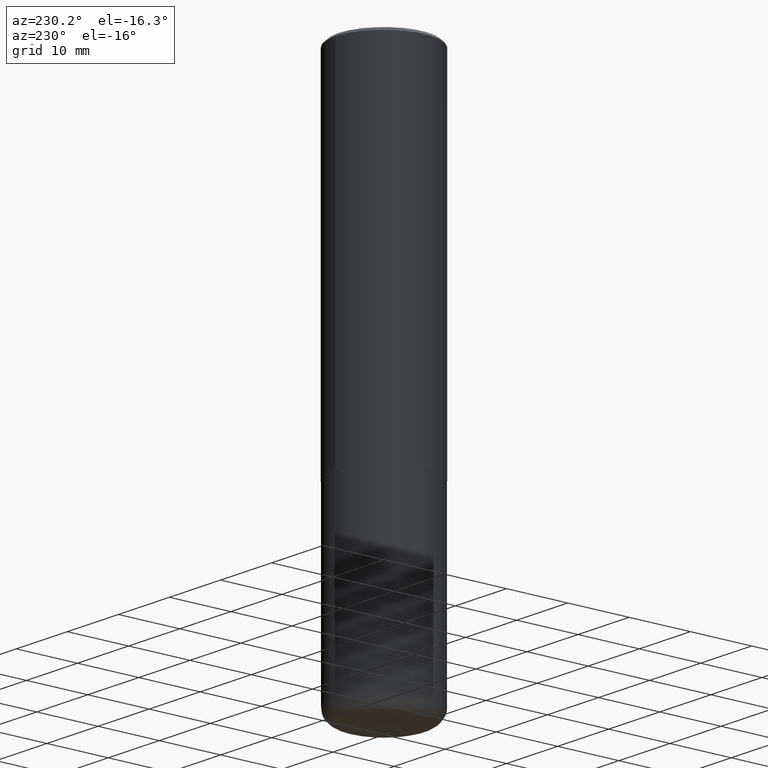
[diagram: clean part render]
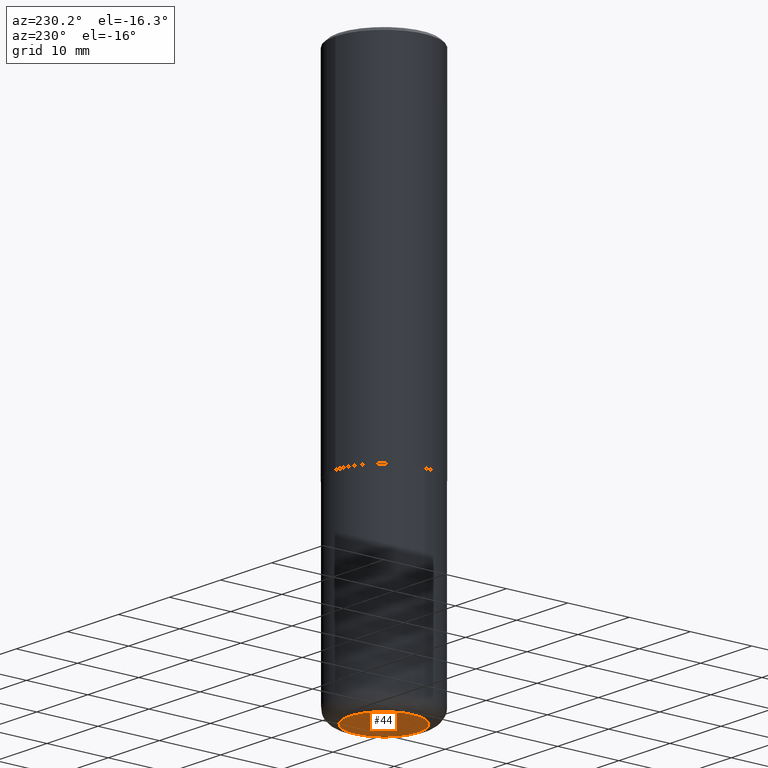
[diagram: same view with one face highlighted and labeled with its STEP entity id]
A machine part, auxiliary view. The second image highlights one B-rep face of the part: STEP entity #44.
In plain terms, the highlighted planar face has unit normal (0, -0, -1).
Its self-contained STEP definition (entity closure, byte-faithful):
#13 = CARTESIAN_POINT ( 'NONE',  ( -0.2225000000000000033, -1.016236620754480236E-14, -3.499999999999999112 ) ) ;
#23 = EDGE_CURVE ( 'NONE', #90, #392, #182, .T. ) ;
#33 = CARTESIAN_POINT ( 'NONE',  ( 8.559140821647976968E-29, -1.222018468595100619E-14, -3.499999999999999112 ) ) ;
#36 = DIRECTION ( 'NONE',  ( -2.445468806185136597E-29, 3.491481338843145583E-15, 1.000000000000000000 ) ) ;
#44 = ADVANCED_FACE ( 'NONE', ( #228 ), #162, .T. ) ;
#63 = AXIS2_PLACEMENT_3D ( 'NONE', #401, #366, #326 ) ;
#65 = DIRECTION ( 'NONE',  ( 1.000000000000000000, -6.982962677686269077E-15, 0.000000000000000000 ) ) ;
#89 = EDGE_CURVE ( 'NONE', #392, #90, #305, .T. ) ;
#90 = VERTEX_POINT ( 'NONE', #13 ) ;
#99 = ORIENTED_EDGE ( 'NONE', *, *, #23, .F. ) ;
#151 = AXIS2_PLACEMENT_3D ( 'NONE', #33, #169, #299 ) ;
#156 = ORIENTED_EDGE ( 'NONE', *, *, #89, .F. ) ;
#162 = PLANE ( 'NONE',  #63 ) ;
#169 = DIRECTION ( 'NONE',  ( -2.445468806185136597E-29, 3.491481338843145583E-15, 1.000000000000000000 ) ) ;
#182 = CIRCLE ( 'NONE', #361, 0.2225000000000000033 ) ;
#204 = CARTESIAN_POINT ( 'NONE',  ( 8.559140821647976968E-29, -1.222018468595100619E-14, -3.499999999999999112 ) ) ;
#228 = FACE_OUTER_BOUND ( 'NONE', #402, .T. ) ;
#299 = DIRECTION ( 'NONE',  ( 1.000000000000000000, -6.982962677686269077E-15, 0.000000000000000000 ) ) ;
#305 = CIRCLE ( 'NONE', #151, 0.2225000000000000033 ) ;
#326 = DIRECTION ( 'NONE',  ( -1.000000000000000000, 6.982962677686265922E-15, -4.876176775795935793E-29 ) ) ;
#361 = AXIS2_PLACEMENT_3D ( 'NONE', #204, #36, #65 ) ;
#366 = DIRECTION ( 'NONE',  ( 2.438088387897960049E-29, -3.491481338843145188E-15, -1.000000000000000000 ) ) ;
#383 = CARTESIAN_POINT ( 'NONE',  ( 0.2225000000000000033, -1.377389388173620116E-14, -3.499999999999999112 ) ) ;
#392 = VERTEX_POINT ( 'NONE', #383 ) ;
#401 = CARTESIAN_POINT ( 'NONE',  ( 1.456070253248337680E-28, -3.625606728355569702E-15, -3.499999999999999112 ) ) ;
#402 = EDGE_LOOP ( 'NONE', ( #156, #99 ) ) ;